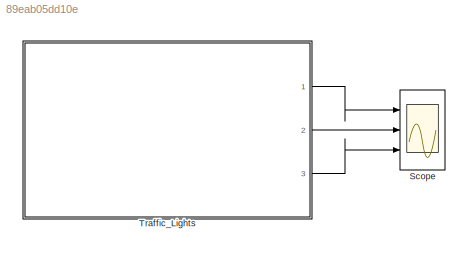
MODEL slx_89eab05dd10e
KIND model
CONFIG AbsTol = auto
CONFIG EnableMultiTasking = off
CONFIG FixedStep = auto
CONFIG MaxStep = auto
CONFIG MinStep = auto
CONFIG RelTol = 1e-3
CONFIG SampleTimeConstraint = Unconstrained
CONFIG SolverName = VariableStepAuto
CONFIG StartTime = 0.0
CONFIG StopTime = 20
BLOCK [Scope] Scope
  Floating = off
  NumInputPorts = 3
  Ports = [3]
  ScopeSpecificationString = Simulink.scopes.TimeScopeBlockCfg('CurrentConfiguration', extmgr.ConfigurationSet(extmgr.Configuration('Core','General UI',true),extmgr.Configuration('Core','Source UI',true),extmgr.Configuration('Sources','WiredSimulink',true),extmgr.Configuration('Visuals','Time Domain',true,'SerializedDisplays',{struct('MinYLimReal','-0.125','MaxYLimReal','1.125','YLabelReal','','MinYLimMag','0.00000','MaxYLimM...<+2986ch>
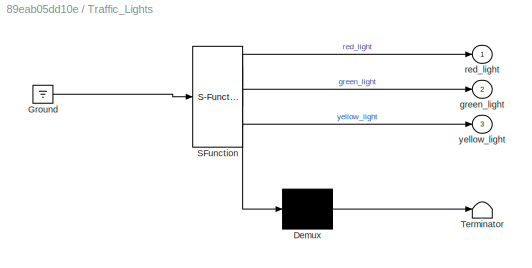
BLOCK [SubSystem] Traffic_Lights
  ErrorFcn = Stateflow.Translate.translate
  PermitHierarchicalResolution = ExplicitOnly
  Ports = [0, 3]
  RequestExecContextInheritance = off
  SFBlockType = Chart
  TreatAsAtomicUnit = on
BLOCK [Demux] Traffic_Lights/ Demux 
  Outputs = 1
  Ports = [1, 1]
BLOCK [Ground] Traffic_Lights/ Ground 
BLOCK [S-Function] Traffic_Lights/ SFunction 
  EnableBusSupport = on
  FunctionName = sf_sfun
  PortCounts = [1 4]
  Ports = [1, 4]
  SFcnIsStateOwnerBlock = off
  SFunctionDeploymentMode = off
  Tag = Stateflow S-Function 3
BLOCK [Terminator] Traffic_Lights/ Terminator 
BLOCK [Outport] Traffic_Lights/green_light
  Port = 2
BLOCK [Outport] Traffic_Lights/red_light
BLOCK [Outport] Traffic_Lights/yellow_light
  Port = 3
LINE Traffic_Lights:1 -> Scope:1
LINE Traffic_Lights:2 -> Scope:2
LINE Traffic_Lights:3 -> Scope:3
CHART Traffic_Lights states=5 transitions=4
  STATE_LABEL 'GoGreen\nentry:\ngreen_light = 1;\nexit:\ngreen_light = 0;'
  STATE_LABEL 'StopRed\nentry:\nred_light = 1;\nexit:\nred_light = 0;'
  STATE_LABEL 'WaitToStop'
  STATE_LABEL 'WaitYellow\nentry:\nyellow_light = 1;\nexit:\nyellow_light = 0;'
  STATE_LABEL 'ToStop\nentry:\ngreen_light = 1;\nexit:\ngreen_light = 0;'
  STATE_LABEL 'WaitYellow\nentry:\nyellow_light = 1;\nexit:\nyellow_light = 0;'
  STATE_LABEL 'ToStop\nentry:\ngreen_light = 1;\nexit:\ngreen_light = 0;'
CHART  states=0 transitions=0
